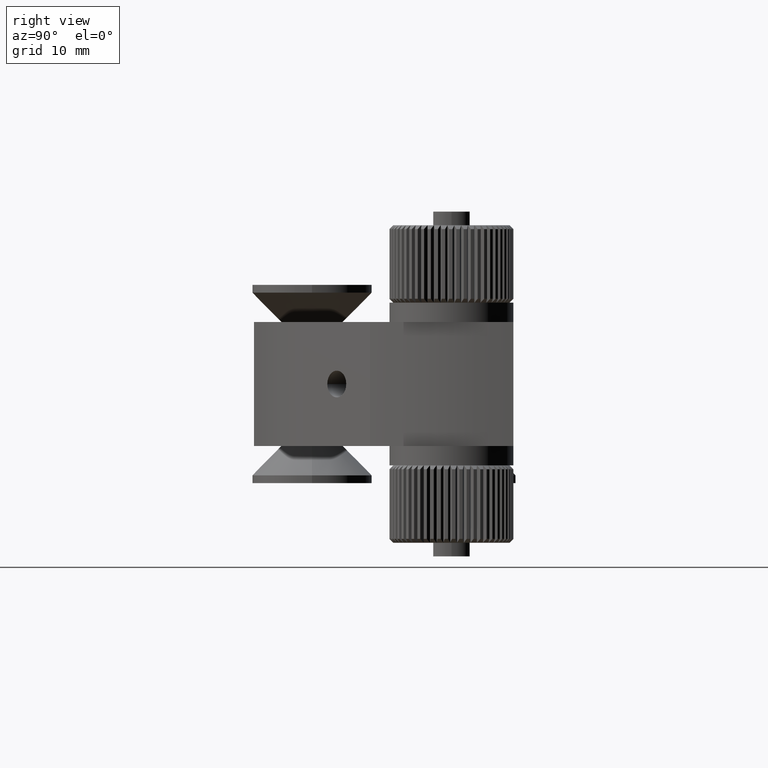
[diagram: clean part render]
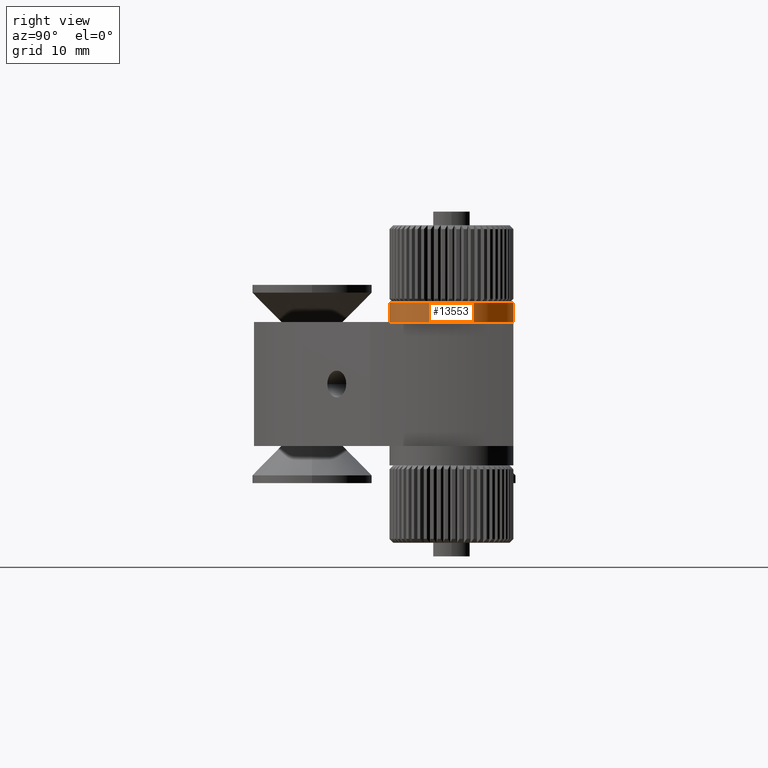
[diagram: same view with one face highlighted and labeled with its STEP entity id]
A machine part, right view. The second image highlights one B-rep face of the part: STEP entity #13553.
In plain terms, the highlighted cylindrical surface (partial cylindrical patch) has radius 8 mm, axis along (0, 0, 1).
Its self-contained STEP definition (entity closure, byte-faithful):
#907 = ORIENTED_EDGE ( 'NONE', *, *, #13344, .F. ) ;
#1613 = CARTESIAN_POINT ( 'NONE',  ( 32.72957168722360400, -9.101940590081937900, 15.60000000000002300 ) ) ;
#1803 = EDGE_CURVE ( 'NONE', #3140, #16202, #2706, .T. ) ;
#2634 = CYLINDRICAL_SURFACE ( 'NONE', #8184, 8.000000000000000000 ) ;
#2706 = CIRCLE ( 'NONE', #17811, 8.000000000000000000 ) ;
#2714 = DIRECTION ( 'NONE',  ( 0.0000000000000000000, -1.000000000000000000, 0.0000000000000000000 ) ) ;
#3140 = VERTEX_POINT ( 'NONE', #13241 ) ;
#3281 = LINE ( 'NONE', #11385, #13902 ) ;
#4444 = AXIS2_PLACEMENT_3D ( 'NONE', #8246, #16619, #2714 ) ;
#5416 = DIRECTION ( 'NONE',  ( 0.0000000000000000000, 0.0000000000000000000, 1.000000000000000000 ) ) ;
#5848 = DIRECTION ( 'NONE',  ( 0.0000000000000000000, -1.000000000000000000, 0.0000000000000000000 ) ) ;
#6056 = ORIENTED_EDGE ( 'NONE', *, *, #1803, .T. ) ;
#6260 = ORIENTED_EDGE ( 'NONE', *, *, #15323, .T. ) ;
#6572 = CARTESIAN_POINT ( 'NONE',  ( 32.72957168722360400, -1.101940590081937500, 15.60000000000002300 ) ) ;
#6635 = DIRECTION ( 'NONE',  ( 0.0000000000000000000, -1.000000000000000000, 0.0000000000000000000 ) ) ;
#7010 = CARTESIAN_POINT ( 'NONE',  ( 32.72957168722360400, -1.101940590081937500, 10.49999999999999500 ) ) ;
#8184 = AXIS2_PLACEMENT_3D ( 'NONE', #1613, #9980, #5848 ) ;
#8246 = CARTESIAN_POINT ( 'NONE',  ( 32.72957168722360400, -9.101940590081937900, 10.49999999999999500 ) ) ;
#8274 = CARTESIAN_POINT ( 'NONE',  ( 32.72957168722360400, -17.10194059008193800, 10.49999999999999500 ) ) ;
#9772 = VERTEX_POINT ( 'NONE', #7010 ) ;
#9980 = DIRECTION ( 'NONE',  ( 0.0000000000000000000, 0.0000000000000000000, 1.000000000000000000 ) ) ;
#10437 = FACE_OUTER_BOUND ( 'NONE', #15851, .T. ) ;
#10938 = CARTESIAN_POINT ( 'NONE',  ( 32.72957168722360400, -9.101940590081937900, 7.999999999999996400 ) ) ;
#11385 = CARTESIAN_POINT ( 'NONE',  ( 32.72957168722360400, -17.10194059008193800, 15.60000000000002300 ) ) ;
#11996 = VECTOR ( 'NONE', #13475, 1000.000000000000000 ) ;
#13241 = CARTESIAN_POINT ( 'NONE',  ( 32.72957168722360400, -17.10194059008193800, 7.999999999999996400 ) ) ;
#13344 = EDGE_CURVE ( 'NONE', #16544, #9772, #15911, .T. ) ;
#13475 = DIRECTION ( 'NONE',  ( 0.0000000000000000000, 0.0000000000000000000, 1.000000000000000000 ) ) ;
#13553 = ADVANCED_FACE ( 'NONE', ( #10437 ), #2634, .T. ) ;
#13902 = VECTOR ( 'NONE', #14105, 1000.000000000000000 ) ;
#13919 = ORIENTED_EDGE ( 'NONE', *, *, #17287, .F. ) ;
#14105 = DIRECTION ( 'NONE',  ( 0.0000000000000000000, 0.0000000000000000000, 1.000000000000000000 ) ) ;
#15270 = LINE ( 'NONE', #6572, #11996 ) ;
#15323 = EDGE_CURVE ( 'NONE', #16202, #9772, #15270, .T. ) ;
#15851 = EDGE_LOOP ( 'NONE', ( #6056, #6260, #907, #13919 ) ) ;
#15911 = CIRCLE ( 'NONE', #4444, 8.000000000000000000 ) ;
#15934 = CARTESIAN_POINT ( 'NONE',  ( 32.72957168722360400, -1.101940590081937500, 7.999999999999996400 ) ) ;
#16202 = VERTEX_POINT ( 'NONE', #15934 ) ;
#16544 = VERTEX_POINT ( 'NONE', #8274 ) ;
#16619 = DIRECTION ( 'NONE',  ( 0.0000000000000000000, 0.0000000000000000000, 1.000000000000000000 ) ) ;
#17287 = EDGE_CURVE ( 'NONE', #3140, #16544, #3281, .T. ) ;
#17811 = AXIS2_PLACEMENT_3D ( 'NONE', #10938, #5416, #6635 ) ;